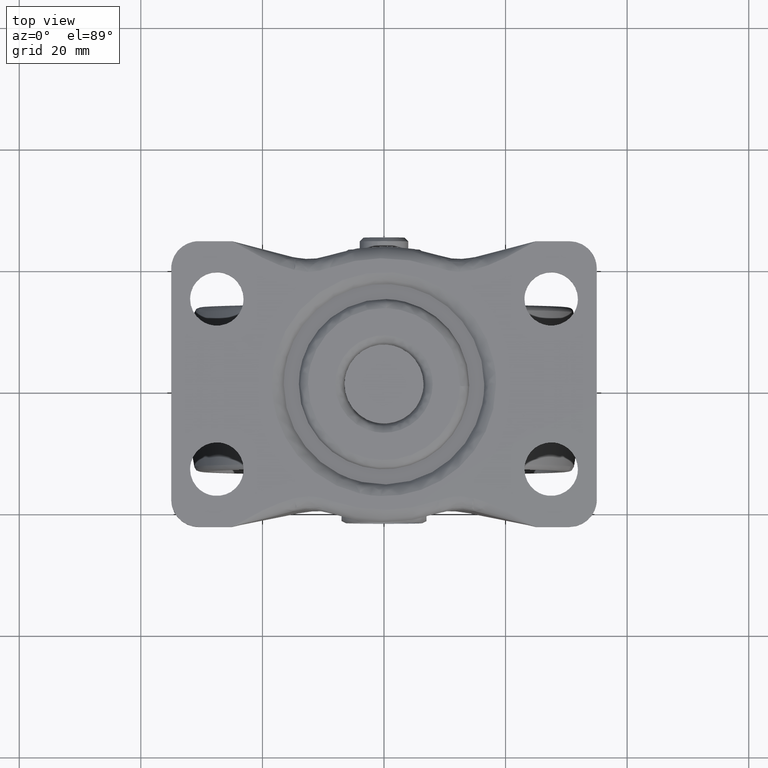
[diagram: clean part render]
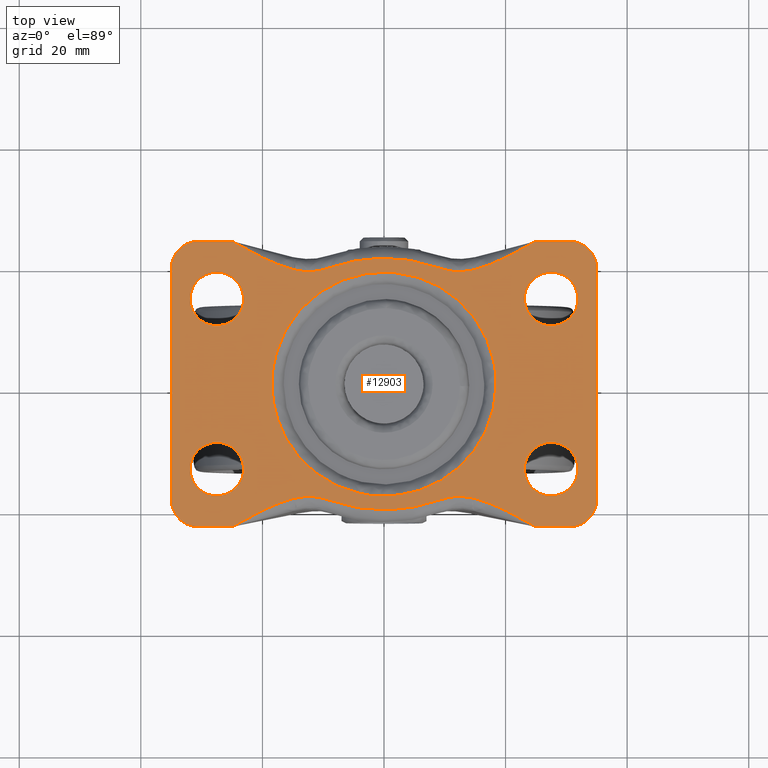
[diagram: same view with one face highlighted and labeled with its STEP entity id]
A machine part, top view. The second image highlights one B-rep face of the part: STEP entity #12903.
In plain terms, the highlighted face is a freeform B-spline surface patch.
Its self-contained STEP definition (entity closure, byte-faithful):
#3688=CARTESIAN_POINT('',(-28.019350644389618,9.630757984710380,52.500000000000000));
#3689=VERTEX_POINT('',#3688);
#3695=CARTESIAN_POINT('',(-23.099999900000000,14.0,52.500000000000000));
#3696=VERTEX_POINT('',#3695);
#3697=CARTESIAN_POINT('',(-28.019350644389618,9.630757984710380,52.500000000000007));
#3698=CARTESIAN_POINT('',(-27.760586132488285,9.599999900000000,52.499999999999993));
#3699=CARTESIAN_POINT('',(-27.500000000000000,9.599999900000000,52.500000000000000));
#3700=CARTESIAN_POINT('',(-23.099999900000004,9.599999900000000,52.500000000000000));
#3701=CARTESIAN_POINT('',(-23.099999900000000,14.0,52.500000000000000));
#3709=(BOUNDED_CURVE()B_SPLINE_CURVE(2,(#3697,#3698,#3699,#3700,#3701),.UNSPECIFIED.,.F.,.U.)B_SPLINE_CURVE_WITH_KNOTS((3,2,3),(0.229562473508182,0.250000000000000,0.500000000000000),.UNSPECIFIED.)CURVE()GEOMETRIC_REPRESENTATION_ITEM()RATIONAL_B_SPLINE_CURVE((0.956026754173260,0.976055948324905,1.0,0.707106781186547,1.0))REPRESENTATION_ITEM(''));
#3710=EDGE_CURVE('',#3689,#3696,#3709,.T.);
#3712=CARTESIAN_POINT('',(-27.231386419853429,18.391793212864290,52.500000000000000));
#3713=VERTEX_POINT('',#3712);
#3714=CARTESIAN_POINT('',(-23.099999900000000,14.0,52.500000000000000));
#3715=CARTESIAN_POINT('',(-23.099999899999997,18.139106788288810,52.500000000000000));
#3716=CARTESIAN_POINT('',(-27.231386419853422,18.391793212864297,52.500000000000000));
#3724=(BOUNDED_CURVE()B_SPLINE_CURVE(2,(#3714,#3715,#3716),.UNSPECIFIED.,.F.,.U.)B_SPLINE_CURVE_WITH_KNOTS((3,3),(0.500000000000000,0.739332962235026),.UNSPECIFIED.)CURVE()GEOMETRIC_REPRESENTATION_ITEM()RATIONAL_B_SPLINE_CURVE((1.0,0.719603993291299,0.976072041658323))REPRESENTATION_ITEM(''));
#3725=EDGE_CURVE('',#3696,#3713,#3724,.T.);
#3799=CARTESIAN_POINT('',(-31.900000100000000,14.0,52.500000000000000));
#3800=VERTEX_POINT('',#3799);
#3801=CARTESIAN_POINT('',(-27.231386419853422,18.391793212864290,52.499999999999993));
#3802=CARTESIAN_POINT('',(-27.365567838342336,18.400000099999996,52.500000000000000));
#3803=CARTESIAN_POINT('',(-27.500000000000000,18.400000100000000,52.500000000000000));
#3804=CARTESIAN_POINT('',(-31.900000099999996,18.400000100000000,52.500000000000000));
#3805=CARTESIAN_POINT('',(-31.900000100000000,14.0,52.500000000000000));
#3813=(BOUNDED_CURVE()B_SPLINE_CURVE(2,(#3801,#3802,#3803,#3804,#3805),.UNSPECIFIED.,.F.,.U.)B_SPLINE_CURVE_WITH_KNOTS((3,2,3),(0.739332962235026,0.750000000000000,1.0),.UNSPECIFIED.)CURVE()GEOMETRIC_REPRESENTATION_ITEM()RATIONAL_B_SPLINE_CURVE((0.976072041658323,0.987502787895249,1.0,0.707106781186547,1.0))REPRESENTATION_ITEM(''));
#3814=EDGE_CURVE('',#3713,#3800,#3813,.T.);
#3816=CARTESIAN_POINT('',(-31.900000100000000,14.0,52.500000000000000));
#3817=CARTESIAN_POINT('',(-31.900000100000000,10.092031997170292,52.499999999999993));
#3818=CARTESIAN_POINT('',(-28.019350644389618,9.630757984710380,52.500000000000007));
#3826=(BOUNDED_CURVE()B_SPLINE_CURVE(2,(#3816,#3817,#3818),.UNSPECIFIED.,.F.,.U.)B_SPLINE_CURVE_WITH_KNOTS((3,3),(0.0,0.229562473508182),.UNSPECIFIED.)CURVE()GEOMETRIC_REPRESENTATION_ITEM()RATIONAL_B_SPLINE_CURVE((1.0,0.731050832861642,0.956026754173260))REPRESENTATION_ITEM(''));
#3827=EDGE_CURVE('',#3800,#3689,#3826,.T.);
#3874=CARTESIAN_POINT('',(-28.019350644389618,-18.369242015289618,52.500000000000000));
#3875=VERTEX_POINT('',#3874);
#3881=CARTESIAN_POINT('',(-23.099999900000000,-14.0,52.500000000000000));
#3882=VERTEX_POINT('',#3881);
#3883=CARTESIAN_POINT('',(-28.019350644389615,-18.369242015289625,52.500000000000000));
#3884=CARTESIAN_POINT('',(-27.760586132488292,-18.400000100000000,52.500000000000007));
#3885=CARTESIAN_POINT('',(-27.500000000000000,-18.400000100000000,52.500000000000000));
#3886=CARTESIAN_POINT('',(-23.099999900000004,-18.400000100000000,52.500000000000000));
#3887=CARTESIAN_POINT('',(-23.099999900000000,-14.0,52.500000000000000));
#3895=(BOUNDED_CURVE()B_SPLINE_CURVE(2,(#3883,#3884,#3885,#3886,#3887),.UNSPECIFIED.,.F.,.U.)B_SPLINE_CURVE_WITH_KNOTS((3,2,3),(0.229562473508182,0.250000000000000,0.500000000000000),.UNSPECIFIED.)CURVE()GEOMETRIC_REPRESENTATION_ITEM()RATIONAL_B_SPLINE_CURVE((0.956026754173260,0.976055948324905,1.0,0.707106781186547,1.0))REPRESENTATION_ITEM(''));
#3896=EDGE_CURVE('',#3875,#3882,#3895,.T.);
#3898=CARTESIAN_POINT('',(-27.231386419853429,-9.608206787135710,52.500000000000000));
#3899=VERTEX_POINT('',#3898);
#3900=CARTESIAN_POINT('',(-23.099999900000000,-14.0,52.500000000000000));
#3901=CARTESIAN_POINT('',(-23.099999899999997,-9.860893211711183,52.500000000000000));
#3902=CARTESIAN_POINT('',(-27.231386419853422,-9.608206787135710,52.500000000000000));
#3910=(BOUNDED_CURVE()B_SPLINE_CURVE(2,(#3900,#3901,#3902),.UNSPECIFIED.,.F.,.U.)B_SPLINE_CURVE_WITH_KNOTS((3,3),(0.500000000000000,0.739332962235026),.UNSPECIFIED.)CURVE()GEOMETRIC_REPRESENTATION_ITEM()RATIONAL_B_SPLINE_CURVE((1.0,0.719603993291299,0.976072041658323))REPRESENTATION_ITEM(''));
#3911=EDGE_CURVE('',#3882,#3899,#3910,.T.);
#3985=CARTESIAN_POINT('',(-31.900000100000000,-14.0,52.500000000000000));
#3986=VERTEX_POINT('',#3985);
#3987=CARTESIAN_POINT('',(-27.231386419853422,-9.608206787135710,52.499999999999993));
#3988=CARTESIAN_POINT('',(-27.365567838342336,-9.599999900000000,52.500000000000000));
#3989=CARTESIAN_POINT('',(-27.500000000000000,-9.599999900000000,52.500000000000000));
#3990=CARTESIAN_POINT('',(-31.900000099999996,-9.599999900000000,52.500000000000000));
#3991=CARTESIAN_POINT('',(-31.900000100000000,-14.0,52.500000000000000));
#3999=(BOUNDED_CURVE()B_SPLINE_CURVE(2,(#3987,#3988,#3989,#3990,#3991),.UNSPECIFIED.,.F.,.U.)B_SPLINE_CURVE_WITH_KNOTS((3,2,3),(0.739332962235026,0.750000000000000,1.0),.UNSPECIFIED.)CURVE()GEOMETRIC_REPRESENTATION_ITEM()RATIONAL_B_SPLINE_CURVE((0.976072041658323,0.987502787895249,1.0,0.707106781186547,1.0))REPRESENTATION_ITEM(''));
#4000=EDGE_CURVE('',#3899,#3986,#3999,.T.);
#4002=CARTESIAN_POINT('',(-31.900000100000000,-14.0,52.500000000000000));
#4003=CARTESIAN_POINT('',(-31.900000100000000,-17.907968002829705,52.500000000000000));
#4004=CARTESIAN_POINT('',(-28.019350644389618,-18.369242015289625,52.499999999999993));
#4012=(BOUNDED_CURVE()B_SPLINE_CURVE(2,(#4002,#4003,#4004),.UNSPECIFIED.,.F.,.U.)B_SPLINE_CURVE_WITH_KNOTS((3,3),(0.0,0.229562473508182),.UNSPECIFIED.)CURVE()GEOMETRIC_REPRESENTATION_ITEM()RATIONAL_B_SPLINE_CURVE((1.0,0.731050832861643,0.956026754173260))REPRESENTATION_ITEM(''));
#4013=EDGE_CURVE('',#3986,#3875,#4012,.T.);
#4060=CARTESIAN_POINT('',(26.980649355610382,9.630757984710380,52.500000000000000));
#4061=VERTEX_POINT('',#4060);
#4067=CARTESIAN_POINT('',(31.900000100000000,14.0,52.500000000000000));
#4068=VERTEX_POINT('',#4067);
#4069=CARTESIAN_POINT('',(26.980649355610382,9.630757984710382,52.500000000000000));
#4070=CARTESIAN_POINT('',(27.239413867511704,9.599999900000000,52.500000000000000));
#4071=CARTESIAN_POINT('',(27.500000000000000,9.599999900000000,52.500000000000000));
#4072=CARTESIAN_POINT('',(31.900000099999996,9.599999900000000,52.500000000000000));
#4073=CARTESIAN_POINT('',(31.900000100000000,14.0,52.500000000000000));
#4081=(BOUNDED_CURVE()B_SPLINE_CURVE(2,(#4069,#4070,#4071,#4072,#4073),.UNSPECIFIED.,.F.,.U.)B_SPLINE_CURVE_WITH_KNOTS((3,2,3),(0.229562473508182,0.250000000000000,0.500000000000000),.UNSPECIFIED.)CURVE()GEOMETRIC_REPRESENTATION_ITEM()RATIONAL_B_SPLINE_CURVE((0.956026754173260,0.976055948324905,1.0,0.707106781186547,1.0))REPRESENTATION_ITEM(''));
#4082=EDGE_CURVE('',#4061,#4068,#4081,.T.);
#4084=CARTESIAN_POINT('',(27.768613580146582,18.391793212864290,52.500000000000000));
#4085=VERTEX_POINT('',#4084);
#4086=CARTESIAN_POINT('',(31.900000100000000,14.0,52.500000000000000));
#4087=CARTESIAN_POINT('',(31.900000100000000,18.139106788288810,52.500000000000000));
#4088=CARTESIAN_POINT('',(27.768613580146575,18.391793212864297,52.500000000000000));
#4096=(BOUNDED_CURVE()B_SPLINE_CURVE(2,(#4086,#4087,#4088),.UNSPECIFIED.,.F.,.U.)B_SPLINE_CURVE_WITH_KNOTS((3,3),(0.500000000000000,0.739332962235026),.UNSPECIFIED.)CURVE()GEOMETRIC_REPRESENTATION_ITEM()RATIONAL_B_SPLINE_CURVE((1.0,0.719603993291299,0.976072041658323))REPRESENTATION_ITEM(''));
#4097=EDGE_CURVE('',#4068,#4085,#4096,.T.);
#4171=CARTESIAN_POINT('',(23.099999900000000,14.0,52.500000000000000));
#4172=VERTEX_POINT('',#4171);
#4173=CARTESIAN_POINT('',(27.768613580146578,18.391793212864290,52.499999999999993));
#4174=CARTESIAN_POINT('',(27.634432161657660,18.400000099999996,52.500000000000000));
#4175=CARTESIAN_POINT('',(27.500000000000000,18.400000100000000,52.500000000000000));
#4176=CARTESIAN_POINT('',(23.099999900000004,18.400000100000000,52.500000000000000));
#4177=CARTESIAN_POINT('',(23.099999900000000,14.0,52.500000000000000));
#4185=(BOUNDED_CURVE()B_SPLINE_CURVE(2,(#4173,#4174,#4175,#4176,#4177),.UNSPECIFIED.,.F.,.U.)B_SPLINE_CURVE_WITH_KNOTS((3,2,3),(0.739332962235026,0.750000000000000,1.0),.UNSPECIFIED.)CURVE()GEOMETRIC_REPRESENTATION_ITEM()RATIONAL_B_SPLINE_CURVE((0.976072041658323,0.987502787895249,1.0,0.707106781186547,1.0))REPRESENTATION_ITEM(''));
#4186=EDGE_CURVE('',#4085,#4172,#4185,.T.);
#4188=CARTESIAN_POINT('',(23.099999900000000,14.0,52.500000000000000));
#4189=CARTESIAN_POINT('',(23.099999899999997,10.092031997170292,52.500000000000000));
#4190=CARTESIAN_POINT('',(26.980649355610385,9.630757984710380,52.500000000000007));
#4198=(BOUNDED_CURVE()B_SPLINE_CURVE(2,(#4188,#4189,#4190),.UNSPECIFIED.,.F.,.U.)B_SPLINE_CURVE_WITH_KNOTS((3,3),(0.0,0.229562473508182),.UNSPECIFIED.)CURVE()GEOMETRIC_REPRESENTATION_ITEM()RATIONAL_B_SPLINE_CURVE((1.0,0.731050832861642,0.956026754173260))REPRESENTATION_ITEM(''));
#4199=EDGE_CURVE('',#4172,#4061,#4198,.T.);
#4246=CARTESIAN_POINT('',(26.980649355610382,-18.369242015289618,52.500000000000000));
#4247=VERTEX_POINT('',#4246);
#4253=CARTESIAN_POINT('',(31.900000100000000,-14.0,52.500000000000000));
#4254=VERTEX_POINT('',#4253);
#4255=CARTESIAN_POINT('',(26.980649355610378,-18.369242015289622,52.500000000000000));
#4256=CARTESIAN_POINT('',(27.239413867511704,-18.400000100000000,52.500000000000007));
#4257=CARTESIAN_POINT('',(27.500000000000000,-18.400000100000000,52.500000000000000));
#4258=CARTESIAN_POINT('',(31.900000099999996,-18.400000100000000,52.500000000000000));
#4259=CARTESIAN_POINT('',(31.900000100000000,-14.0,52.500000000000000));
#4267=(BOUNDED_CURVE()B_SPLINE_CURVE(2,(#4255,#4256,#4257,#4258,#4259),.UNSPECIFIED.,.F.,.U.)B_SPLINE_CURVE_WITH_KNOTS((3,2,3),(0.229562473508182,0.250000000000000,0.500000000000000),.UNSPECIFIED.)CURVE()GEOMETRIC_REPRESENTATION_ITEM()RATIONAL_B_SPLINE_CURVE((0.956026754173260,0.976055948324905,1.0,0.707106781186547,1.0))REPRESENTATION_ITEM(''));
#4268=EDGE_CURVE('',#4247,#4254,#4267,.T.);
#4270=CARTESIAN_POINT('',(27.768613580146582,-9.608206787135710,52.500000000000000));
#4271=VERTEX_POINT('',#4270);
#4272=CARTESIAN_POINT('',(31.900000100000000,-14.0,52.500000000000000));
#4273=CARTESIAN_POINT('',(31.900000100000000,-9.860893211711183,52.500000000000000));
#4274=CARTESIAN_POINT('',(27.768613580146575,-9.608206787135710,52.500000000000000));
#4282=(BOUNDED_CURVE()B_SPLINE_CURVE(2,(#4272,#4273,#4274),.UNSPECIFIED.,.F.,.U.)B_SPLINE_CURVE_WITH_KNOTS((3,3),(0.500000000000000,0.739332962235026),.UNSPECIFIED.)CURVE()GEOMETRIC_REPRESENTATION_ITEM()RATIONAL_B_SPLINE_CURVE((1.0,0.719603993291299,0.976072041658323))REPRESENTATION_ITEM(''));
#4283=EDGE_CURVE('',#4254,#4271,#4282,.T.);
#4357=CARTESIAN_POINT('',(23.099999900000000,-14.0,52.500000000000000));
#4358=VERTEX_POINT('',#4357);
#4359=CARTESIAN_POINT('',(27.768613580146578,-9.608206787135710,52.499999999999993));
#4360=CARTESIAN_POINT('',(27.634432161657660,-9.599999900000000,52.500000000000000));
#4361=CARTESIAN_POINT('',(27.500000000000000,-9.599999900000000,52.500000000000000));
#4362=CARTESIAN_POINT('',(23.099999900000004,-9.599999900000000,52.500000000000000));
#4363=CARTESIAN_POINT('',(23.099999900000000,-14.0,52.500000000000000));
#4371=(BOUNDED_CURVE()B_SPLINE_CURVE(2,(#4359,#4360,#4361,#4362,#4363),.UNSPECIFIED.,.F.,.U.)B_SPLINE_CURVE_WITH_KNOTS((3,2,3),(0.739332962235026,0.750000000000000,1.0),.UNSPECIFIED.)CURVE()GEOMETRIC_REPRESENTATION_ITEM()RATIONAL_B_SPLINE_CURVE((0.976072041658323,0.987502787895249,1.0,0.707106781186547,1.0))REPRESENTATION_ITEM(''));
#4372=EDGE_CURVE('',#4271,#4358,#4371,.T.);
#4374=CARTESIAN_POINT('',(23.099999900000000,-14.0,52.500000000000000));
#4375=CARTESIAN_POINT('',(23.099999899999997,-17.907968002829712,52.499999999999993));
#4376=CARTESIAN_POINT('',(26.980649355610385,-18.369242015289618,52.500000000000007));
#4384=(BOUNDED_CURVE()B_SPLINE_CURVE(2,(#4374,#4375,#4376),.UNSPECIFIED.,.F.,.U.)B_SPLINE_CURVE_WITH_KNOTS((3,3),(0.0,0.229562473508182),.UNSPECIFIED.)CURVE()GEOMETRIC_REPRESENTATION_ITEM()RATIONAL_B_SPLINE_CURVE((1.0,0.731050832861642,0.956026754173260))REPRESENTATION_ITEM(''));
#4385=EDGE_CURVE('',#4358,#4247,#4384,.T.);
#4993=CARTESIAN_POINT('',(-4.009652861226801,-17.995191275965571,52.500000000000000));
#4994=VERTEX_POINT('',#4993);
#5008=CARTESIAN_POINT('',(18.436491673103699,0.0,52.500000000000000));
#5009=VERTEX_POINT('',#5008);
#5010=CARTESIAN_POINT('',(18.436491673103699,0.0,52.500000000000000));
#5011=CARTESIAN_POINT('',(18.436491673103699,-18.436491673103699,52.500000000000000));
#5012=CARTESIAN_POINT('',(0.0,-18.436491673103699,52.500000000000000));
#5013=CARTESIAN_POINT('',(-2.029111081710930,-18.436491673103703,52.500000000000000));
#5014=CARTESIAN_POINT('',(-4.009652861226801,-17.995191275965571,52.500000000000000));
#5022=(BOUNDED_CURVE()B_SPLINE_CURVE(2,(#5010,#5011,#5012,#5013,#5014),.UNSPECIFIED.,.F.,.U.)B_SPLINE_CURVE_WITH_KNOTS((3,2,3),(0.0,0.250000000000000,0.287215332192824),.UNSPECIFIED.)CURVE()GEOMETRIC_REPRESENTATION_ITEM()RATIONAL_B_SPLINE_CURVE((1.0,0.707106781186547,1.0,0.956399526259327,0.925779901430843))REPRESENTATION_ITEM(''));
#5023=EDGE_CURVE('',#5009,#4994,#5022,.T.);
#5025=CARTESIAN_POINT('',(-17.736415154594081,5.032276085974713,52.499999999999993));
#5026=VERTEX_POINT('',#5025);
#5027=CARTESIAN_POINT('',(-17.736415154594088,5.032276085974713,52.499999999999993));
#5028=CARTESIAN_POINT('',(-13.933295249610127,18.436491673103696,52.499999999999993));
#5029=CARTESIAN_POINT('',(0.0,18.436491673103699,52.500000000000000));
#5030=CARTESIAN_POINT('',(18.436491673103699,18.436491673103699,52.500000000000000));
#5031=CARTESIAN_POINT('',(18.436491673103699,0.0,52.500000000000000));
#5039=(BOUNDED_CURVE()B_SPLINE_CURVE(2,(#5027,#5028,#5029,#5030,#5031),.UNSPECIFIED.,.F.,.U.)B_SPLINE_CURVE_WITH_KNOTS((3,2,3),(0.546505535788267,0.750000000000000,1.0),.UNSPECIFIED.)CURVE()GEOMETRIC_REPRESENTATION_ITEM()RATIONAL_B_SPLINE_CURVE((0.911301444597061,0.761591405465227,1.0,0.707106781186547,1.0))REPRESENTATION_ITEM(''));
#5040=EDGE_CURVE('',#5026,#5009,#5039,.T.);
#5127=CARTESIAN_POINT('',(-18.436491673103699,0.0,52.500000000000000));
#5128=VERTEX_POINT('',#5127);
#5129=CARTESIAN_POINT('',(-18.436491673103699,0.0,52.500000000000000));
#5130=CARTESIAN_POINT('',(-18.436491673103692,2.564834410628457,52.500000000000007));
#5131=CARTESIAN_POINT('',(-17.736415154594095,5.032276085974713,52.499999999999993));
#5139=(BOUNDED_CURVE()B_SPLINE_CURVE(2,(#5129,#5130,#5131),.UNSPECIFIED.,.F.,.U.)B_SPLINE_CURVE_WITH_KNOTS((3,3),(0.500000000000000,0.546505535788266),.UNSPECIFIED.)CURVE()GEOMETRIC_REPRESENTATION_ITEM()RATIONAL_B_SPLINE_CURVE((1.0,0.945515375721322,0.911301444597063))REPRESENTATION_ITEM(''));
#5140=EDGE_CURVE('',#5128,#5026,#5139,.T.);
#5142=CARTESIAN_POINT('',(-4.009652861226801,-17.995191275965571,52.500000000000000));
#5143=CARTESIAN_POINT('',(-18.436491673103696,-14.780631642011759,52.500000000000000));
#5144=CARTESIAN_POINT('',(-18.436491673103699,0.0,52.500000000000000));
#5152=(BOUNDED_CURVE()B_SPLINE_CURVE(2,(#5142,#5143,#5144),.UNSPECIFIED.,.F.,.U.)B_SPLINE_CURVE_WITH_KNOTS((3,3),(0.287215332192824,0.500000000000000),.UNSPECIFIED.)CURVE()GEOMETRIC_REPRESENTATION_ITEM()RATIONAL_B_SPLINE_CURVE((0.925779901430843,0.750707254927220,1.0))REPRESENTATION_ITEM(''));
#5153=EDGE_CURVE('',#4994,#5128,#5152,.T.);
#7663=CARTESIAN_POINT('',(-12.444766159390859,18.426391028678349,52.500000000000000));
#7664=VERTEX_POINT('',#7663);
#8238=CARTESIAN_POINT('',(12.444766159390859,18.426391028678349,52.500000000000000));
#8239=VERTEX_POINT('',#8238);
#8844=CARTESIAN_POINT('',(-12.444766159390840,-18.426391028678349,52.500000000000000));
#8845=VERTEX_POINT('',#8844);
#9447=CARTESIAN_POINT('',(12.444766159390859,-18.426391028678349,52.500000000000000));
#9448=VERTEX_POINT('',#9447);
#9537=CARTESIAN_POINT('',(-24.999914554479648,-23.500000000000000,52.500000000000000));
#9538=VERTEX_POINT('',#9537);
#9548=CARTESIAN_POINT('',(-14.750145525630259,-18.787422903256250,52.500000000000000));
#9549=VERTEX_POINT('',#9548);
#9563=CARTESIAN_POINT('',(-24.999914554479648,-23.500000000000000,52.500000000000000));
#9564=CARTESIAN_POINT('',(-21.666672481771901,-21.606396040465299,52.500000000000000));
#9565=CARTESIAN_POINT('',(-18.333430409064100,-19.712792080930601,52.500000000000000));
#9566=CARTESIAN_POINT('',(-14.750145525630280,-18.787422903256250,52.500000000000000));
#9567=QUASI_UNIFORM_CURVE('',3,(#9563,#9564,#9565,#9566),.UNSPECIFIED.,.F.,.U.);
#9568=EDGE_CURVE('',#9538,#9549,#9567,.T.);
#9592=CARTESIAN_POINT('',(-14.750145525630250,-18.787422903256282,52.500000000000000));
#9593=CARTESIAN_POINT('',(-13.615090640419497,-18.494299459290485,52.500000000000000));
#9594=CARTESIAN_POINT('',(-12.444766159390840,-18.426391028678349,52.500000000000000));
#9602=(BOUNDED_CURVE()B_SPLINE_CURVE(2,(#9592,#9593,#9594),.UNSPECIFIED.,.F.,.U.)CURVE()GEOMETRIC_REPRESENTATION_ITEM()QUASI_UNIFORM_CURVE()RATIONAL_B_SPLINE_CURVE((1.0,0.995262111242610,1.0))REPRESENTATION_ITEM(''));
#9603=EDGE_CURVE('',#9549,#8845,#9602,.T.);
#9628=CARTESIAN_POINT('',(-8.847856370996681,-19.157283002046452,52.500000000000000));
#9629=VERTEX_POINT('',#9628);
#9630=CARTESIAN_POINT('',(-12.444766159390840,-18.426391028678349,52.500000000000000));
#9631=CARTESIAN_POINT('',(-11.827580178150980,-18.461095044464820,52.500000000000000));
#9632=CARTESIAN_POINT('',(-11.219369638555300,-18.539969546563121,52.500000000000007));
#9633=CARTESIAN_POINT('',(-10.020377096581910,-18.783488922307090,52.500000000000007));
#9634=CARTESIAN_POINT('',(-9.429594212623886,-18.948129457466351,52.499999999999993));
#9635=CARTESIAN_POINT('',(-8.847856370996681,-19.157283002046452,52.500000000000000));
#9636=B_SPLINE_CURVE_WITH_KNOTS('',3,(#9630,#9631,#9632,#9633,#9634,#9635),.UNSPECIFIED.,.F.,.U.,(4,2,4),(0.0,0.500000000000000,1.0),.UNSPECIFIED.);
#9637=EDGE_CURVE('',#8845,#9629,#9636,.T.);
#9710=CARTESIAN_POINT('',(8.847856370996700,-19.157283002046452,52.500000000000000));
#9711=VERTEX_POINT('',#9710);
#9725=CARTESIAN_POINT('',(-8.847856370996713,-19.157283002046452,52.500000000000000));
#9726=CARTESIAN_POINT('',(-1.108829E-014,-22.338373159003222,52.500000000000000));
#9727=CARTESIAN_POINT('',(8.847856370996700,-19.157283002046459,52.500000000000000));
#9735=(BOUNDED_CURVE()B_SPLINE_CURVE(2,(#9725,#9726,#9727),.UNSPECIFIED.,.F.,.U.)CURVE()GEOMETRIC_REPRESENTATION_ITEM()QUASI_UNIFORM_CURVE()RATIONAL_B_SPLINE_CURVE((1.0,0.941493803983767,1.0))REPRESENTATION_ITEM(''));
#9736=EDGE_CURVE('',#9629,#9711,#9735,.T.);
#9767=CARTESIAN_POINT('',(8.847856370996700,-19.157283002046452,52.500000000000000));
#9768=CARTESIAN_POINT('',(9.429594212623906,-18.948129457466351,52.500000000000000));
#9769=CARTESIAN_POINT('',(10.020377096581930,-18.783488922307090,52.500000000000007));
#9770=CARTESIAN_POINT('',(11.219369638555310,-18.539969546563121,52.500000000000007));
#9771=CARTESIAN_POINT('',(11.827580178151001,-18.461095044464820,52.499999999999993));
#9772=CARTESIAN_POINT('',(12.444766159390859,-18.426391028678349,52.500000000000000));
#9773=B_SPLINE_CURVE_WITH_KNOTS('',3,(#9767,#9768,#9769,#9770,#9771,#9772),.UNSPECIFIED.,.F.,.U.,(4,2,4),(0.0,0.500000000000000,1.0),.UNSPECIFIED.);
#9774=EDGE_CURVE('',#9711,#9448,#9773,.T.);
#9796=CARTESIAN_POINT('',(14.750145525630300,-18.787422903256250,52.500000000000000));
#9797=VERTEX_POINT('',#9796);
#9798=CARTESIAN_POINT('',(12.444766159390859,-18.426391028678360,52.500000000000000));
#9799=CARTESIAN_POINT('',(13.615090640419528,-18.494299459290485,52.500000000000000));
#9800=CARTESIAN_POINT('',(14.750145525630289,-18.787422903256282,52.500000000000000));
#9808=(BOUNDED_CURVE()B_SPLINE_CURVE(2,(#9798,#9799,#9800),.UNSPECIFIED.,.F.,.U.)CURVE()GEOMETRIC_REPRESENTATION_ITEM()QUASI_UNIFORM_CURVE()RATIONAL_B_SPLINE_CURVE((1.0,0.995262111242610,1.0))REPRESENTATION_ITEM(''));
#9809=EDGE_CURVE('',#9448,#9797,#9808,.T.);
#9867=CARTESIAN_POINT('',(24.999914554479648,-23.500000000000000,52.500000000000000));
#9868=VERTEX_POINT('',#9867);
#9876=CARTESIAN_POINT('',(14.750145525630300,-18.787422903256250,52.500000000000000));
#9877=CARTESIAN_POINT('',(18.333430409064100,-19.712792080930601,52.500000000000000));
#9878=CARTESIAN_POINT('',(21.666672481771901,-21.606396040465299,52.500000000000000));
#9879=CARTESIAN_POINT('',(24.999914554479648,-23.500000000000000,52.500000000000000));
#9880=QUASI_UNIFORM_CURVE('',3,(#9876,#9877,#9878,#9879),.UNSPECIFIED.,.F.,.U.);
#9881=EDGE_CURVE('',#9797,#9868,#9880,.T.);
#9906=CARTESIAN_POINT('',(24.999914554479648,23.500000000000000,52.500000000000000));
#9907=VERTEX_POINT('',#9906);
#9917=CARTESIAN_POINT('',(14.750145525630280,18.787422903256250,52.500000000000000));
#9918=VERTEX_POINT('',#9917);
#9932=CARTESIAN_POINT('',(24.999914554479648,23.500000000000000,52.500000000000000));
#9933=CARTESIAN_POINT('',(21.666672481771901,21.606396040465299,52.500000000000000));
#9934=CARTESIAN_POINT('',(18.333430409064100,19.712792080930601,52.500000000000000));
#9935=CARTESIAN_POINT('',(14.750145525630280,18.787422903256250,52.500000000000000));
#9936=QUASI_UNIFORM_CURVE('',3,(#9932,#9933,#9934,#9935),.UNSPECIFIED.,.F.,.U.);
#9937=EDGE_CURVE('',#9907,#9918,#9936,.T.);
#9961=CARTESIAN_POINT('',(14.750145525630280,18.787422903256282,52.500000000000000));
#9962=CARTESIAN_POINT('',(13.615090640419515,18.494299459290481,52.500000000000007));
#9963=CARTESIAN_POINT('',(12.444766159390859,18.426391028678360,52.500000000000000));
#9971=(BOUNDED_CURVE()B_SPLINE_CURVE(2,(#9961,#9962,#9963),.UNSPECIFIED.,.F.,.U.)CURVE()GEOMETRIC_REPRESENTATION_ITEM()QUASI_UNIFORM_CURVE()RATIONAL_B_SPLINE_CURVE((1.0,0.995262111242610,1.0))REPRESENTATION_ITEM(''));
#9972=EDGE_CURVE('',#9918,#8239,#9971,.T.);
#9997=CARTESIAN_POINT('',(8.847856370996681,19.157283002046452,52.500000000000000));
#9998=VERTEX_POINT('',#9997);
#9999=CARTESIAN_POINT('',(12.444766159390859,18.426391028678349,52.500000000000000));
#10000=CARTESIAN_POINT('',(11.827580178151001,18.461095044464820,52.500000000000000));
#10001=CARTESIAN_POINT('',(11.219369638555310,18.539969546563121,52.500000000000007));
#10002=CARTESIAN_POINT('',(10.020377096581919,18.783488922307090,52.500000000000007));
#10003=CARTESIAN_POINT('',(9.429594212623890,18.948129457466351,52.499999999999993));
#10004=CARTESIAN_POINT('',(8.847856370996681,19.157283002046452,52.500000000000000));
#10005=B_SPLINE_CURVE_WITH_KNOTS('',3,(#9999,#10000,#10001,#10002,#10003,#10004),.UNSPECIFIED.,.F.,.U.,(4,2,4),(0.0,0.500000000000000,1.0),.UNSPECIFIED.);
#10006=EDGE_CURVE('',#8239,#9998,#10005,.T.);
#10082=CARTESIAN_POINT('',(-8.847856370996700,19.157283002046452,52.500000000000000));
#10083=VERTEX_POINT('',#10082);
#10097=CARTESIAN_POINT('',(8.847856370996713,19.157283002046452,52.500000000000000));
#10098=CARTESIAN_POINT('',(9.728389E-015,22.338373159003222,52.500000000000000));
#10099=CARTESIAN_POINT('',(-8.847856370996700,19.157283002046459,52.500000000000000));
#10107=(BOUNDED_CURVE()B_SPLINE_CURVE(2,(#10097,#10098,#10099),.UNSPECIFIED.,.F.,.U.)CURVE()GEOMETRIC_REPRESENTATION_ITEM()QUASI_UNIFORM_CURVE()RATIONAL_B_SPLINE_CURVE((1.0,0.941493803983767,1.0))REPRESENTATION_ITEM(''));
#10108=EDGE_CURVE('',#9998,#10083,#10107,.T.);
#10136=CARTESIAN_POINT('',(-8.847856370996700,19.157283002046452,52.500000000000000));
#10137=CARTESIAN_POINT('',(-9.429594212623906,18.948129457466351,52.500000000000000));
#10138=CARTESIAN_POINT('',(-10.020377096581930,18.783488922307090,52.500000000000007));
#10139=CARTESIAN_POINT('',(-11.219369638555310,18.539969546563121,52.500000000000007));
#10140=CARTESIAN_POINT('',(-11.827580178151001,18.461095044464820,52.499999999999993));
#10141=CARTESIAN_POINT('',(-12.444766159390859,18.426391028678349,52.500000000000000));
#10142=B_SPLINE_CURVE_WITH_KNOTS('',3,(#10136,#10137,#10138,#10139,#10140,#10141),.UNSPECIFIED.,.F.,.U.,(4,2,4),(0.0,0.500000000000000,1.0),.UNSPECIFIED.);
#10143=EDGE_CURVE('',#10083,#7664,#10142,.T.);
#10165=CARTESIAN_POINT('',(-14.750145525630300,18.787422903256250,52.500000000000000));
#10166=VERTEX_POINT('',#10165);
#10167=CARTESIAN_POINT('',(-12.444766159390859,18.426391028678360,52.500000000000000));
#10168=CARTESIAN_POINT('',(-13.615090640419515,18.494299459290481,52.500000000000000));
#10169=CARTESIAN_POINT('',(-14.750145525630289,18.787422903256289,52.500000000000000));
#10177=(BOUNDED_CURVE()B_SPLINE_CURVE(2,(#10167,#10168,#10169),.UNSPECIFIED.,.F.,.U.)CURVE()GEOMETRIC_REPRESENTATION_ITEM()QUASI_UNIFORM_CURVE()RATIONAL_B_SPLINE_CURVE((1.0,0.995262111242610,1.0))REPRESENTATION_ITEM(''));
#10178=EDGE_CURVE('',#7664,#10166,#10177,.T.);
#10236=CARTESIAN_POINT('',(-24.999914554479648,23.500000000000000,52.500000000000000));
#10237=VERTEX_POINT('',#10236);
#10245=CARTESIAN_POINT('',(-14.750145525630300,18.787422903256250,52.500000000000000));
#10246=CARTESIAN_POINT('',(-18.333430409064100,19.712792080930601,52.500000000000000));
#10247=CARTESIAN_POINT('',(-21.666672481771901,21.606396040465299,52.500000000000000));
#10248=CARTESIAN_POINT('',(-24.999914554479648,23.500000000000000,52.500000000000000));
#10249=QUASI_UNIFORM_CURVE('',3,(#10245,#10246,#10247,#10248),.UNSPECIFIED.,.F.,.U.);
#10250=EDGE_CURVE('',#10166,#10237,#10249,.T.);
#12674=CARTESIAN_POINT('',(-30.500000000000000,23.500000000000000,52.500000000000000));
#12675=VERTEX_POINT('',#12674);
#12682=CARTESIAN_POINT('',(-35.0,19.0,52.500000000000000));
#12683=VERTEX_POINT('',#12682);
#12689=CARTESIAN_POINT('',(-34.999999999999993,19.0,52.500000000000000));
#12690=CARTESIAN_POINT('',(-35.0,23.500000000000007,52.500000000000000));
#12691=CARTESIAN_POINT('',(-30.500000000000000,23.500000000000000,52.500000000000000));
#12699=(BOUNDED_CURVE()B_SPLINE_CURVE(2,(#12689,#12690,#12691),.UNSPECIFIED.,.F.,.U.)CURVE()GEOMETRIC_REPRESENTATION_ITEM()QUASI_UNIFORM_CURVE()RATIONAL_B_SPLINE_CURVE((1.0,0.707106781186547,1.0))REPRESENTATION_ITEM(''));
#12700=EDGE_CURVE('',#12683,#12675,#12699,.T.);
#12711=CARTESIAN_POINT('',(-35.0,-19.0,52.500000000000000));
#12712=VERTEX_POINT('',#12711);
#12718=CARTESIAN_POINT('',(-35.0,19.0,52.500000000000000));
#12719=CARTESIAN_POINT('',(-35.0,-19.0,52.500000000000000));
#12720=QUASI_UNIFORM_CURVE('',1,(#12718,#12719),.UNSPECIFIED.,.F.,.U.);
#12721=EDGE_CURVE('',#12683,#12712,#12720,.T.);
#12743=CARTESIAN_POINT('',(-30.499998586283450,-23.500000000000000,52.500000000000000));
#12744=VERTEX_POINT('',#12743);
#12750=CARTESIAN_POINT('',(-30.499998586283450,-23.500000000000000,52.500000000000000));
#12751=CARTESIAN_POINT('',(-32.363960031030288,-23.500000585580480,52.500000000000000));
#12752=CARTESIAN_POINT('',(-33.681980015515137,-22.181981015163700,52.500000000000000));
#12753=CARTESIAN_POINT('',(-34.999999999999993,-20.863961444746927,52.500000000000000));
#12754=CARTESIAN_POINT('',(-34.999999999999993,-19.0,52.500000000000000));
#12762=(BOUNDED_CURVE()B_SPLINE_CURVE(2,(#12750,#12751,#12752,#12753,#12754),.UNSPECIFIED.,.F.,.U.)B_SPLINE_CURVE_WITH_KNOTS((3,2,3),(0.0,0.500000000000000,1.0),.UNSPECIFIED.)CURVE()GEOMETRIC_REPRESENTATION_ITEM()RATIONAL_B_SPLINE_CURVE((1.0,0.923879502455400,1.0,0.923879502455400,1.0))REPRESENTATION_ITEM(''));
#12763=EDGE_CURVE('',#12744,#12712,#12762,.T.);
#12788=CARTESIAN_POINT('',(-38.496499864326417,-25.847649908904881,52.500000000000000));
#12789=CARTESIAN_POINT('',(38.496501741872727,-25.847649908904881,52.500000000000000));
#12790=CARTESIAN_POINT('',(-38.496499864326417,25.847651169543120,52.500000000000000));
#12791=CARTESIAN_POINT('',(38.496501741872727,25.847651169543120,52.500000000000000));
#12792=B_SPLINE_SURFACE_WITH_KNOTS('',1,1,((#12788,#12790),(#12789,#12791)),.UNSPECIFIED.,.F.,.F.,.U.,(2,2),(2,2),(0.0,76.993001606199158),(0.0,51.695301078447997),.UNSPECIFIED.);
#12793=CARTESIAN_POINT('',(-30.499998586283450,-23.500000000000000,52.500000000000000));
#12794=CARTESIAN_POINT('',(-24.999914554479648,-23.500000000000000,52.500000000000000));
#12795=QUASI_UNIFORM_CURVE('',1,(#12793,#12794),.UNSPECIFIED.,.F.,.U.);
#12796=EDGE_CURVE('',#12744,#9538,#12795,.T.);
#12797=ORIENTED_EDGE('',*,*,#12796,.T.);
#12798=ORIENTED_EDGE('',*,*,#9568,.T.);
#12799=ORIENTED_EDGE('',*,*,#9603,.T.);
#12800=ORIENTED_EDGE('',*,*,#9637,.T.);
#12801=ORIENTED_EDGE('',*,*,#9736,.T.);
#12802=ORIENTED_EDGE('',*,*,#9774,.T.);
#12803=ORIENTED_EDGE('',*,*,#9809,.T.);
#12804=ORIENTED_EDGE('',*,*,#9881,.T.);
#12805=CARTESIAN_POINT('',(30.500000000000000,-23.500000000000000,52.500000000000000));
#12806=VERTEX_POINT('',#12805);
#12807=CARTESIAN_POINT('',(24.999914554479648,-23.500000000000000,52.500000000000000));
#12808=CARTESIAN_POINT('',(30.500000000000000,-23.500000000000000,52.500000000000000));
#12809=QUASI_UNIFORM_CURVE('',1,(#12807,#12808),.UNSPECIFIED.,.F.,.U.);
#12810=EDGE_CURVE('',#9868,#12806,#12809,.T.);
#12811=ORIENTED_EDGE('',*,*,#12810,.T.);
#12812=CARTESIAN_POINT('',(35.0,-19.0,52.500000000000000));
#12813=VERTEX_POINT('',#12812);
#12814=CARTESIAN_POINT('',(34.999999999999993,-19.0,52.500000000000000));
#12815=CARTESIAN_POINT('',(35.0,-23.500000000000007,52.500000000000000));
#12816=CARTESIAN_POINT('',(30.500000000000000,-23.500000000000000,52.500000000000000));
#12824=(BOUNDED_CURVE()B_SPLINE_CURVE(2,(#12814,#12815,#12816),.UNSPECIFIED.,.F.,.U.)CURVE()GEOMETRIC_REPRESENTATION_ITEM()QUASI_UNIFORM_CURVE()RATIONAL_B_SPLINE_CURVE((1.0,0.707106781186547,1.0))REPRESENTATION_ITEM(''));
#12825=EDGE_CURVE('',#12813,#12806,#12824,.T.);
#12826=ORIENTED_EDGE('',*,*,#12825,.F.);
#12827=CARTESIAN_POINT('',(35.0,19.0,52.500000000000000));
#12828=VERTEX_POINT('',#12827);
#12829=CARTESIAN_POINT('',(35.0,-19.0,52.500000000000000));
#12830=CARTESIAN_POINT('',(35.0,19.0,52.500000000000000));
#12831=QUASI_UNIFORM_CURVE('',1,(#12829,#12830),.UNSPECIFIED.,.F.,.U.);
#12832=EDGE_CURVE('',#12813,#12828,#12831,.T.);
#12833=ORIENTED_EDGE('',*,*,#12832,.T.);
#12834=CARTESIAN_POINT('',(30.499998586283450,23.500000000000000,52.500000000000000));
#12835=VERTEX_POINT('',#12834);
#12836=CARTESIAN_POINT('',(30.499998586283450,23.500000000000000,52.500000000000000));
#12837=CARTESIAN_POINT('',(32.363960031030288,23.500000585580477,52.500000000000000));
#12838=CARTESIAN_POINT('',(33.681980015515137,22.181981015163700,52.500000000000000));
#12839=CARTESIAN_POINT('',(35.000000000000007,20.863961444746938,52.500000000000000));
#12840=CARTESIAN_POINT('',(34.999999999999993,19.0,52.500000000000000));
#12848=(BOUNDED_CURVE()B_SPLINE_CURVE(2,(#12836,#12837,#12838,#12839,#12840),.UNSPECIFIED.,.F.,.U.)B_SPLINE_CURVE_WITH_KNOTS((3,2,3),(0.0,0.500000000000000,1.0),.UNSPECIFIED.)CURVE()GEOMETRIC_REPRESENTATION_ITEM()RATIONAL_B_SPLINE_CURVE((1.0,0.923879502455401,1.0,0.923879502455401,1.0))REPRESENTATION_ITEM(''));
#12849=EDGE_CURVE('',#12835,#12828,#12848,.T.);
#12850=ORIENTED_EDGE('',*,*,#12849,.F.);
#12851=CARTESIAN_POINT('',(30.499998586283450,23.500000000000000,52.500000000000000));
#12852=CARTESIAN_POINT('',(24.999914554479648,23.500000000000000,52.500000000000000));
#12853=QUASI_UNIFORM_CURVE('',1,(#12851,#12852),.UNSPECIFIED.,.F.,.U.);
#12854=EDGE_CURVE('',#12835,#9907,#12853,.T.);
#12855=ORIENTED_EDGE('',*,*,#12854,.T.);
#12856=ORIENTED_EDGE('',*,*,#9937,.T.);
#12857=ORIENTED_EDGE('',*,*,#9972,.T.);
#12858=ORIENTED_EDGE('',*,*,#10006,.T.);
#12859=ORIENTED_EDGE('',*,*,#10108,.T.);
#12860=ORIENTED_EDGE('',*,*,#10143,.T.);
#12861=ORIENTED_EDGE('',*,*,#10178,.T.);
#12862=ORIENTED_EDGE('',*,*,#10250,.T.);
#12863=CARTESIAN_POINT('',(-24.999914554479648,23.500000000000000,52.500000000000000));
#12864=CARTESIAN_POINT('',(-30.500000000000000,23.500000000000000,52.500000000000000));
#12865=QUASI_UNIFORM_CURVE('',1,(#12863,#12864),.UNSPECIFIED.,.F.,.U.);
#12866=EDGE_CURVE('',#10237,#12675,#12865,.T.);
#12867=ORIENTED_EDGE('',*,*,#12866,.T.);
#12868=ORIENTED_EDGE('',*,*,#12700,.F.);
#12869=ORIENTED_EDGE('',*,*,#12721,.T.);
#12870=ORIENTED_EDGE('',*,*,#12763,.F.);
#12871=EDGE_LOOP('',(#12797,#12798,#12799,#12800,#12801,#12802,#12803,#12804,#12811,#12826,#12833,#12850,#12855,#12856,#12857,#12858,#12859,#12860,#12861,#12862,#12867,#12868,#12869,#12870));
#12872=FACE_OUTER_BOUND('',#12871,.T.);
#12873=ORIENTED_EDGE('',*,*,#5140,.T.);
#12874=ORIENTED_EDGE('',*,*,#5040,.T.);
#12875=ORIENTED_EDGE('',*,*,#5023,.T.);
#12876=ORIENTED_EDGE('',*,*,#5153,.T.);
#12877=EDGE_LOOP('',(#12873,#12874,#12875,#12876));
#12878=FACE_BOUND('',#12877,.T.);
#12879=ORIENTED_EDGE('',*,*,#4283,.F.);
#12880=ORIENTED_EDGE('',*,*,#4268,.F.);
#12881=ORIENTED_EDGE('',*,*,#4385,.F.);
#12882=ORIENTED_EDGE('',*,*,#4372,.F.);
#12883=EDGE_LOOP('',(#12879,#12880,#12881,#12882));
#12884=FACE_BOUND('',#12883,.T.);
#12885=ORIENTED_EDGE('',*,*,#4097,.F.);
#12886=ORIENTED_EDGE('',*,*,#4082,.F.);
#12887=ORIENTED_EDGE('',*,*,#4199,.F.);
#12888=ORIENTED_EDGE('',*,*,#4186,.F.);
#12889=EDGE_LOOP('',(#12885,#12886,#12887,#12888));
#12890=FACE_BOUND('',#12889,.T.);
#12891=ORIENTED_EDGE('',*,*,#3911,.F.);
#12892=ORIENTED_EDGE('',*,*,#3896,.F.);
#12893=ORIENTED_EDGE('',*,*,#4013,.F.);
#12894=ORIENTED_EDGE('',*,*,#4000,.F.);
#12895=EDGE_LOOP('',(#12891,#12892,#12893,#12894));
#12896=FACE_BOUND('',#12895,.T.);
#12897=ORIENTED_EDGE('',*,*,#3725,.F.);
#12898=ORIENTED_EDGE('',*,*,#3710,.F.);
#12899=ORIENTED_EDGE('',*,*,#3827,.F.);
#12900=ORIENTED_EDGE('',*,*,#3814,.F.);
#12901=EDGE_LOOP('',(#12897,#12898,#12899,#12900));
#12902=FACE_BOUND('',#12901,.T.);
#12903=ADVANCED_FACE('',(#12872,#12878,#12884,#12890,#12896,#12902),#12792,.T.);